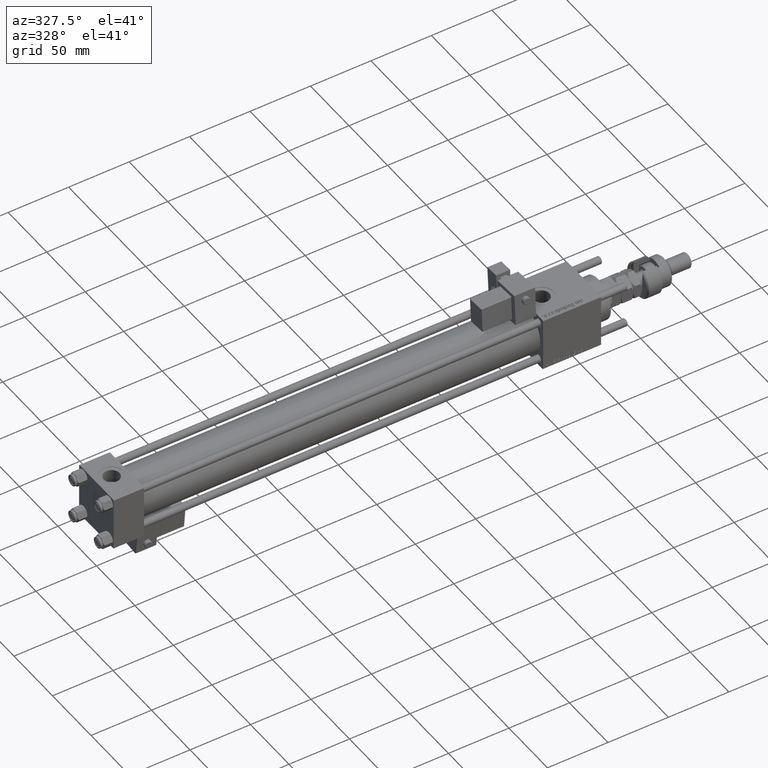
[diagram: clean part render]
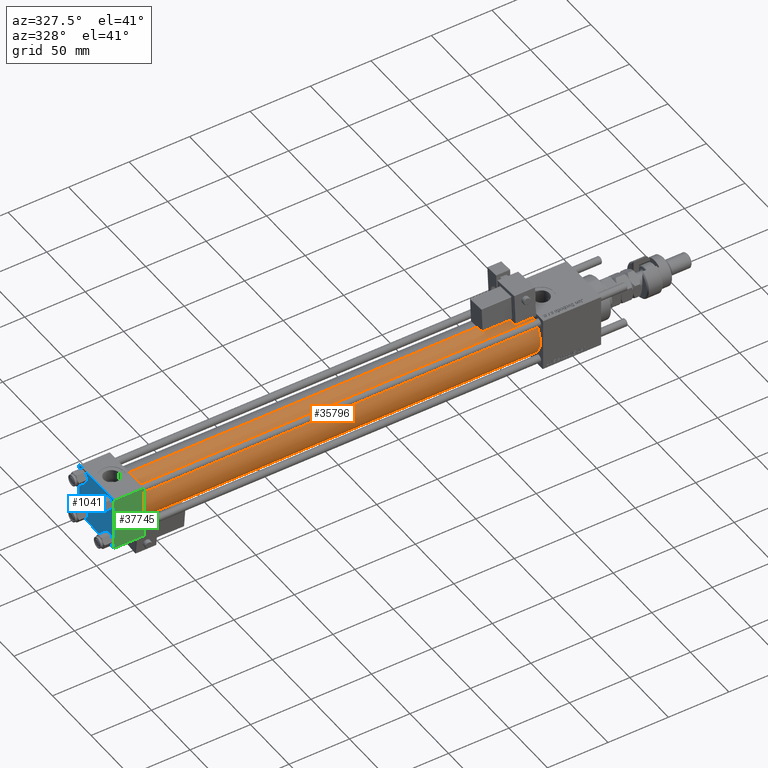
[diagram: same view with three faces highlighted in distinct colors, each labeled with its STEP entity id]
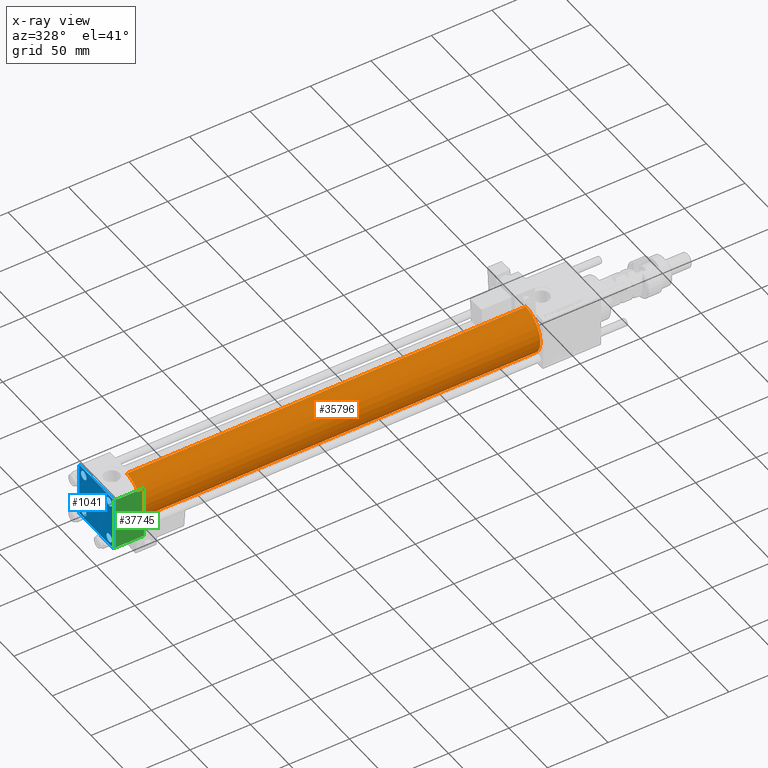
[diagram: x-ray of the same camera — body ghosted, the three highlighted faces saturated]
A machine part, auxiliary view with three faces highlighted in distinct colors.
The next image is the same camera in x-ray (body ghosted, the three faces saturated) — at least one of them is partly hidden behind the body in this view.
Their STEP definitions:

[orange] entity #35796 — the highlighted cylindrical surface (edge-blend (fillet) strip) has radius 19 mm, axis along (-1, -0, -0).
#879 = DIRECTION ( 'NONE',  ( 1.000000000000000000, -0.000000000000000000, 0.000000000000000000 ) ) ;
#2211 = EDGE_CURVE ( 'NONE', #40407, #42524, #3230, .T. ) ;
#3114 = AXIS2_PLACEMENT_3D ( 'NONE', #50347, #879, #40004 ) ;
#3230 = LINE ( 'NONE', #27159, #59552 ) ;
#4105 = AXIS2_PLACEMENT_3D ( 'NONE', #26622, #46352, #12707 ) ;
#5595 = EDGE_CURVE ( 'NONE', #40407, #15595, #50190, .T. ) ;
#11231 = ORIENTED_EDGE ( 'NONE', *, *, #5595, .F. ) ;
#12707 = DIRECTION ( 'NONE',  ( 0.000000000000000000, 0.000000000000000000, 1.000000000000000000 ) ) ;
#13084 = CARTESIAN_POINT ( 'NONE',  ( 355.0000000000000568, -2.602085213965210642E-15, 0.000000000000000000 ) ) ;
#15160 = AXIS2_PLACEMENT_3D ( 'NONE', #13084, #62222, #18244 ) ;
#15494 = CIRCLE ( 'NONE', #3114, 19.00000000000000000 ) ;
#15595 = VERTEX_POINT ( 'NONE', #47426 ) ;
#18244 = DIRECTION ( 'NONE',  ( 0.000000000000000000, 0.000000000000000000, -1.000000000000000000 ) ) ;
#22395 = CYLINDRICAL_SURFACE ( 'NONE', #4105, 19.00000000000000000 ) ;
#25767 = VECTOR ( 'NONE', #37605, 1000.000000000000000 ) ;
#26622 = CARTESIAN_POINT ( 'NONE',  ( 355.0000000000000568, -2.602085213965210642E-15, 0.000000000000000000 ) ) ;
#27159 = CARTESIAN_POINT ( 'NONE',  ( 355.0000000000000568, -2.602085213965210642E-15, 19.00000000000000000 ) ) ;
#27908 = CARTESIAN_POINT ( 'NONE',  ( 355.0000000000000568, -2.752562955852396712E-16, -19.00000000000000000 ) ) ;
#33250 = ORIENTED_EDGE ( 'NONE', *, *, #2211, .T. ) ;
#35796 = ADVANCED_FACE ( 'NONE', ( #46036 ), #22395, .T. ) ;
#37605 = DIRECTION ( 'NONE',  ( -1.000000000000000000, -0.000000000000000000, -0.000000000000000000 ) ) ;
#40004 = DIRECTION ( 'NONE',  ( 0.000000000000000000, 0.000000000000000000, 1.000000000000000000 ) ) ;
#40407 = VERTEX_POINT ( 'NONE', #57990 ) ;
#42524 = VERTEX_POINT ( 'NONE', #60083 ) ;
#43105 = LINE ( 'NONE', #27908, #25767 ) ;
#43531 = VERTEX_POINT ( 'NONE', #62310 ) ;
#44284 = ORIENTED_EDGE ( 'NONE', *, *, #59370, .F. ) ;
#46036 = FACE_OUTER_BOUND ( 'NONE', #49205, .T. ) ;
#46352 = DIRECTION ( 'NONE',  ( -1.000000000000000000, -0.000000000000000000, -0.000000000000000000 ) ) ;
#46895 = DIRECTION ( 'NONE',  ( -1.000000000000000000, -0.000000000000000000, -0.000000000000000000 ) ) ;
#47426 = CARTESIAN_POINT ( 'NONE',  ( 355.0000000000000568, -2.752562955852396712E-16, -19.00000000000000000 ) ) ;
#48452 = ORIENTED_EDGE ( 'NONE', *, *, #57094, .T. ) ;
#49205 = EDGE_LOOP ( 'NONE', ( #44284, #11231, #33250, #48452 ) ) ;
#50190 = CIRCLE ( 'NONE', #15160, 19.00000000000000000 ) ;
#50347 = CARTESIAN_POINT ( 'NONE',  ( 25.00000000000002132, -2.602085213965210642E-15, 0.000000000000000000 ) ) ;
#57094 = EDGE_CURVE ( 'NONE', #42524, #43531, #15494, .T. ) ;
#57990 = CARTESIAN_POINT ( 'NONE',  ( 355.0000000000000568, -2.602085213965210642E-15, 19.00000000000000000 ) ) ;
#59370 = EDGE_CURVE ( 'NONE', #15595, #43531, #43105, .T. ) ;
#59552 = VECTOR ( 'NONE', #46895, 1000.000000000000000 ) ;
#60083 = CARTESIAN_POINT ( 'NONE',  ( 25.00000000000002132, -2.602085213965210642E-15, 19.00000000000000000 ) ) ;
#62222 = DIRECTION ( 'NONE',  ( 1.000000000000000000, 0.000000000000000000, 0.000000000000000000 ) ) ;
#62310 = CARTESIAN_POINT ( 'NONE',  ( 25.00000000000002132, -2.752562955852396712E-16, -19.00000000000000000 ) ) ;

[blue] entity #1041 — the highlighted planar face has unit normal (-1, 0, 0).
#209 = ORIENTED_EDGE ( 'NONE', *, *, #47847, .F. ) ;
#253 = DIRECTION ( 'NONE',  ( 1.000000000000000000, -0.000000000000000000, 0.000000000000000000 ) ) ;
#1041 = ADVANCED_FACE ( 'NONE', ( #62810, #47627, #62476, #18192, #37918 ), #33369, .T. ) ;
#1866 = CARTESIAN_POINT ( 'NONE',  ( 0.000000000000000000, -22.50000000000000000, -21.99999999999997158 ) ) ;
#1874 = CARTESIAN_POINT ( 'NONE',  ( 0.000000000000000000, 16.59999999999999787, -20.10000000000000142 ) ) ;
#2033 = CIRCLE ( 'NONE', #51562, 3.499999999999996003 ) ;
#3666 = VECTOR ( 'NONE', #10133, 1000.000000000000000 ) ;
#3687 = VERTEX_POINT ( 'NONE', #29966 ) ;
#3772 = VECTOR ( 'NONE', #33117, 1000.000000000000000 ) ;
#3834 = CARTESIAN_POINT ( 'NONE',  ( 0.000000000000000000, 16.59999999999999787, 16.60000000000000497 ) ) ;
#3898 = LINE ( 'NONE', #18432, #19552 ) ;
#4266 = EDGE_CURVE ( 'NONE', #24926, #26868, #48157, .T. ) ;
#4298 = DIRECTION ( 'NONE',  ( -0.000000000000000000, -0.7071067811865426878, -0.7071067811865524577 ) ) ;
#4313 = DIRECTION ( 'NONE',  ( 0.000000000000000000, 0.000000000000000000, 1.000000000000000000 ) ) ;
#4807 = CIRCLE ( 'NONE', #33677, 3.499999999999996003 ) ;
#5330 = CARTESIAN_POINT ( 'NONE',  ( 0.000000000000000000, 21.99999999999999289, 22.50000000000000355 ) ) ;
#5743 = VERTEX_POINT ( 'NONE', #59281 ) ;
#5837 = ORIENTED_EDGE ( 'NONE', *, *, #34842, .T. ) ;
#6214 = ORIENTED_EDGE ( 'NONE', *, *, #26239, .T. ) ;
#6684 = DIRECTION ( 'NONE',  ( 0.000000000000000000, 0.000000000000000000, 1.000000000000000000 ) ) ;
#7110 = EDGE_CURVE ( 'NONE', #3687, #45908, #42901, .T. ) ;
#7538 = AXIS2_PLACEMENT_3D ( 'NONE', #9085, #30078, #28802 ) ;
#7952 = CARTESIAN_POINT ( 'NONE',  ( 0.000000000000000000, 16.59999999999999787, -16.60000000000000497 ) ) ;
#9023 = CIRCLE ( 'NONE', #63750, 3.499999999999996003 ) ;
#9085 = CARTESIAN_POINT ( 'NONE',  ( 0.000000000000000000, -16.59999999999999076, -16.60000000000000853 ) ) ;
#9220 = CIRCLE ( 'NONE', #48498, 3.499999999999996003 ) ;
#9651 = LINE ( 'NONE', #39710, #35840 ) ;
#10133 = DIRECTION ( 'NONE',  ( 0.000000000000000000, 0.000000000000000000, -1.000000000000000000 ) ) ;
#13045 = VERTEX_POINT ( 'NONE', #49401 ) ;
#13101 = VERTEX_POINT ( 'NONE', #14495 ) ;
#13345 = DIRECTION ( 'NONE',  ( -0.000000000000000000, 0.000000000000000000, 1.000000000000000000 ) ) ;
#13668 = EDGE_CURVE ( 'NONE', #57993, #13045, #36433, .T. ) ;
#13722 = LINE ( 'NONE', #48632, #3772 ) ;
#13876 = CARTESIAN_POINT ( 'NONE',  ( 0.000000000000000000, 22.24999999999999645, 22.24999999999999645 ) ) ;
#13887 = CARTESIAN_POINT ( 'NONE',  ( 0.000000000000000000, -16.59999999999999076, 20.10000000000000853 ) ) ;
#13979 = DIRECTION ( 'NONE',  ( -1.000000000000000000, 0.000000000000000000, -0.000000000000000000 ) ) ;
#14495 = CARTESIAN_POINT ( 'NONE',  ( 0.000000000000000000, -21.99999999999997868, 22.50000000000000000 ) ) ;
#14509 = ORIENTED_EDGE ( 'NONE', *, *, #50752, .T. ) ;
#14671 = LINE ( 'NONE', #60220, #3666 ) ;
#14693 = VERTEX_POINT ( 'NONE', #38117 ) ;
#15117 = AXIS2_PLACEMENT_3D ( 'NONE', #57648, #13979, #13345 ) ;
#15419 = EDGE_LOOP ( 'NONE', ( #6214, #15757 ) ) ;
#15448 = CARTESIAN_POINT ( 'NONE',  ( 0.000000000000000000, 21.99999999999999289, -22.49999999999999645 ) ) ;
#15757 = ORIENTED_EDGE ( 'NONE', *, *, #13668, .T. ) ;
#16725 = VERTEX_POINT ( 'NONE', #1874 ) ;
#17010 = DIRECTION ( 'NONE',  ( 1.000000000000000000, -0.000000000000000000, 0.000000000000000000 ) ) ;
#17384 = DIRECTION ( 'NONE',  ( 0.000000000000000000, 0.000000000000000000, -1.000000000000000000 ) ) ;
#18192 = FACE_BOUND ( 'NONE', #61016, .T. ) ;
#18432 = CARTESIAN_POINT ( 'NONE',  ( -0.000000000000000000, -22.24999999999984013, 22.25000000000015277 ) ) ;
#19552 = VECTOR ( 'NONE', #33617, 999.9999999999998863 ) ;
#20776 = AXIS2_PLACEMENT_3D ( 'NONE', #7952, #27662, #22806 ) ;
#22711 = ORIENTED_EDGE ( 'NONE', *, *, #37268, .T. ) ;
#22806 = DIRECTION ( 'NONE',  ( 0.000000000000000000, 0.000000000000000000, 1.000000000000000000 ) ) ;
#23686 = DIRECTION ( 'NONE',  ( 0.000000000000000000, 0.000000000000000000, 1.000000000000000000 ) ) ;
#24624 = CARTESIAN_POINT ( 'NONE',  ( 0.000000000000000000, 16.59999999999999787, -13.10000000000000675 ) ) ;
#24926 = VERTEX_POINT ( 'NONE', #5330 ) ;
#25480 = DIRECTION ( 'NONE',  ( 0.000000000000000000, -0.7071067811865426878, 0.7071067811865524577 ) ) ;
#26227 = ORIENTED_EDGE ( 'NONE', *, *, #63358, .T. ) ;
#26239 = EDGE_CURVE ( 'NONE', #13045, #57993, #4807, .T. ) ;
#26719 = VERTEX_POINT ( 'NONE', #24624 ) ;
#26868 = VERTEX_POINT ( 'NONE', #40482 ) ;
#26923 = DIRECTION ( 'NONE',  ( 0.000000000000000000, 0.000000000000000000, 1.000000000000000000 ) ) ;
#27071 = CARTESIAN_POINT ( 'NONE',  ( 0.000000000000000000, -22.50000000000000000, 22.50000000000000000 ) ) ;
#27616 = EDGE_CURVE ( 'NONE', #56239, #55538, #39926, .T. ) ;
#27662 = DIRECTION ( 'NONE',  ( 1.000000000000000000, -0.000000000000000000, 0.000000000000000000 ) ) ;
#28524 = ORIENTED_EDGE ( 'NONE', *, *, #27616, .T. ) ;
#28802 = DIRECTION ( 'NONE',  ( 0.000000000000000000, 0.000000000000000000, 1.000000000000000000 ) ) ;
#29175 = LINE ( 'NONE', #48902, #55730 ) ;
#29191 = ORIENTED_EDGE ( 'NONE', *, *, #7110, .F. ) ;
#29966 = CARTESIAN_POINT ( 'NONE',  ( 0.000000000000000000, -22.50000000000000000, 22.00000000000000000 ) ) ;
#30078 = DIRECTION ( 'NONE',  ( 1.000000000000000000, -0.000000000000000000, 0.000000000000000000 ) ) ;
#30864 = CARTESIAN_POINT ( 'NONE',  ( 0.000000000000000000, -16.59999999999999076, -20.10000000000000497 ) ) ;
#32300 = EDGE_CURVE ( 'NONE', #63889, #14693, #54633, .T. ) ;
#33117 = DIRECTION ( 'NONE',  ( 0.000000000000000000, -1.000000000000000000, -7.709882115452476934E-17 ) ) ;
#33369 = PLANE ( 'NONE',  #15117 ) ;
#33617 = DIRECTION ( 'NONE',  ( -0.000000000000000000, 0.7071067811865525687, 0.7071067811865425767 ) ) ;
#33677 = AXIS2_PLACEMENT_3D ( 'NONE', #56143, #17010, #6684 ) ;
#33712 = CARTESIAN_POINT ( 'NONE',  ( 0.000000000000000000, 16.59999999999999787, 16.60000000000000497 ) ) ;
#33730 = AXIS2_PLACEMENT_3D ( 'NONE', #33712, #54413, #23686 ) ;
#33878 = DIRECTION ( 'NONE',  ( 0.000000000000000000, 0.000000000000000000, 1.000000000000000000 ) ) ;
#33959 = EDGE_CURVE ( 'NONE', #43121, #5743, #2033, .T. ) ;
#33960 = VECTOR ( 'NONE', #54306, 1000.000000000000000 ) ;
#34842 = EDGE_CURVE ( 'NONE', #5743, #43121, #9220, .T. ) ;
#35099 = EDGE_LOOP ( 'NONE', ( #43504, #5837 ) ) ;
#35235 = CIRCLE ( 'NONE', #20776, 3.499999999999996003 ) ;
#35334 = CARTESIAN_POINT ( 'NONE',  ( 0.000000000000000000, 16.59999999999999787, 13.10000000000000675 ) ) ;
#35840 = VECTOR ( 'NONE', #25480, 1000.000000000000000 ) ;
#36433 = CIRCLE ( 'NONE', #7538, 3.499999999999996003 ) ;
#37268 = EDGE_CURVE ( 'NONE', #3687, #13101, #3898, .T. ) ;
#37618 = DIRECTION ( 'NONE',  ( 1.000000000000000000, -0.000000000000000000, 0.000000000000000000 ) ) ;
#37918 = FACE_OUTER_BOUND ( 'NONE', #55518, .T. ) ;
#38117 = CARTESIAN_POINT ( 'NONE',  ( 0.000000000000000000, -21.99999999999997158, -22.50000000000000711 ) ) ;
#38898 = ORIENTED_EDGE ( 'NONE', *, *, #46179, .T. ) ;
#39710 = CARTESIAN_POINT ( 'NONE',  ( 0.000000000000000000, -22.25000000000014566, -22.24999999999984013 ) ) ;
#39926 = CIRCLE ( 'NONE', #33730, 3.499999999999996003 ) ;
#39946 = ORIENTED_EDGE ( 'NONE', *, *, #49890, .T. ) ;
#40078 = CARTESIAN_POINT ( 'NONE',  ( 0.000000000000000000, 22.50000000000000000, -22.49999999999999645 ) ) ;
#40482 = CARTESIAN_POINT ( 'NONE',  ( 0.000000000000000000, 22.50000000000000000, 21.99999999999999645 ) ) ;
#41169 = DIRECTION ( 'NONE',  ( 1.000000000000000000, -0.000000000000000000, 0.000000000000000000 ) ) ;
#41922 = CARTESIAN_POINT ( 'NONE',  ( 0.000000000000000000, 22.50000000000000000, -21.99999999999996803 ) ) ;
#42901 = LINE ( 'NONE', #27071, #48203 ) ;
#43080 = VECTOR ( 'NONE', #57548, 1000.000000000000114 ) ;
#43121 = VERTEX_POINT ( 'NONE', #13887 ) ;
#43252 = EDGE_LOOP ( 'NONE', ( #14509, #26227 ) ) ;
#43504 = ORIENTED_EDGE ( 'NONE', *, *, #33959, .T. ) ;
#45908 = VERTEX_POINT ( 'NONE', #1866 ) ;
#46179 = EDGE_CURVE ( 'NONE', #26868, #54887, #14671, .T. ) ;
#47033 = CARTESIAN_POINT ( 'NONE',  ( 0.000000000000000000, 16.59999999999999787, 20.10000000000000142 ) ) ;
#47461 = DIRECTION ( 'NONE',  ( 1.000000000000000000, -0.000000000000000000, 0.000000000000000000 ) ) ;
#47627 = FACE_BOUND ( 'NONE', #15419, .T. ) ;
#47847 = EDGE_CURVE ( 'NONE', #24926, #13101, #13722, .T. ) ;
#47990 = EDGE_CURVE ( 'NONE', #55538, #56239, #50241, .T. ) ;
#48157 = LINE ( 'NONE', #13876, #43080 ) ;
#48203 = VECTOR ( 'NONE', #17384, 1000.000000000000000 ) ;
#48498 = AXIS2_PLACEMENT_3D ( 'NONE', #51511, #41169, #26923 ) ;
#48632 = CARTESIAN_POINT ( 'NONE',  ( 0.000000000000000000, 22.50000000000000000, 22.50000000000000355 ) ) ;
#48902 = CARTESIAN_POINT ( 'NONE',  ( 0.000000000000000000, 22.25000000000014566, -22.24999999999984013 ) ) ;
#49401 = CARTESIAN_POINT ( 'NONE',  ( 0.000000000000000000, -16.59999999999999076, -13.10000000000001030 ) ) ;
#49890 = EDGE_CURVE ( 'NONE', #14693, #45908, #9651, .T. ) ;
#50241 = CIRCLE ( 'NONE', #59557, 3.499999999999996003 ) ;
#50752 = EDGE_CURVE ( 'NONE', #26719, #16725, #9023, .T. ) ;
#50903 = ORIENTED_EDGE ( 'NONE', *, *, #47990, .T. ) ;
#51511 = CARTESIAN_POINT ( 'NONE',  ( 0.000000000000000000, -16.59999999999999076, 16.60000000000000853 ) ) ;
#51562 = AXIS2_PLACEMENT_3D ( 'NONE', #63458, #37618, #4313 ) ;
#53524 = ORIENTED_EDGE ( 'NONE', *, *, #4266, .T. ) ;
#54306 = DIRECTION ( 'NONE',  ( 0.000000000000000000, -1.000000000000000000, -2.312964634635742957E-16 ) ) ;
#54413 = DIRECTION ( 'NONE',  ( 1.000000000000000000, -0.000000000000000000, 0.000000000000000000 ) ) ;
#54633 = LINE ( 'NONE', #40078, #33960 ) ;
#54887 = VERTEX_POINT ( 'NONE', #41922 ) ;
#55518 = EDGE_LOOP ( 'NONE', ( #38898, #56089, #62209, #39946, #29191, #22711, #209, #53524 ) ) ;
#55538 = VERTEX_POINT ( 'NONE', #35334 ) ;
#55730 = VECTOR ( 'NONE', #4298, 1000.000000000000000 ) ;
#56089 = ORIENTED_EDGE ( 'NONE', *, *, #59349, .T. ) ;
#56143 = CARTESIAN_POINT ( 'NONE',  ( 0.000000000000000000, -16.59999999999999076, -16.60000000000000853 ) ) ;
#56239 = VERTEX_POINT ( 'NONE', #47033 ) ;
#56851 = CARTESIAN_POINT ( 'NONE',  ( 0.000000000000000000, 16.59999999999999787, -16.60000000000000497 ) ) ;
#57548 = DIRECTION ( 'NONE',  ( 0.000000000000000000, 0.7071067811865474617, -0.7071067811865474617 ) ) ;
#57648 = CARTESIAN_POINT ( 'NONE',  ( 0.000000000000000000, 0.000000000000000000, 0.000000000000000000 ) ) ;
#57993 = VERTEX_POINT ( 'NONE', #30864 ) ;
#59281 = CARTESIAN_POINT ( 'NONE',  ( 0.000000000000000000, -16.59999999999999076, 13.10000000000001030 ) ) ;
#59349 = EDGE_CURVE ( 'NONE', #54887, #63889, #29175, .T. ) ;
#59557 = AXIS2_PLACEMENT_3D ( 'NONE', #3834, #253, #33878 ) ;
#60220 = CARTESIAN_POINT ( 'NONE',  ( 0.000000000000000000, 22.50000000000000000, 22.50000000000000355 ) ) ;
#61016 = EDGE_LOOP ( 'NONE', ( #28524, #50903 ) ) ;
#62209 = ORIENTED_EDGE ( 'NONE', *, *, #32300, .T. ) ;
#62312 = DIRECTION ( 'NONE',  ( 0.000000000000000000, 0.000000000000000000, 1.000000000000000000 ) ) ;
#62476 = FACE_BOUND ( 'NONE', #43252, .T. ) ;
#62810 = FACE_BOUND ( 'NONE', #35099, .T. ) ;
#63358 = EDGE_CURVE ( 'NONE', #16725, #26719, #35235, .T. ) ;
#63458 = CARTESIAN_POINT ( 'NONE',  ( 0.000000000000000000, -16.59999999999999076, 16.60000000000000853 ) ) ;
#63750 = AXIS2_PLACEMENT_3D ( 'NONE', #56851, #47461, #62312 ) ;
#63889 = VERTEX_POINT ( 'NONE', #15448 ) ;

[green] entity #37745 — the highlighted planar face has unit normal (0, 1, 0).
#1866 = CARTESIAN_POINT ( 'NONE',  ( 0.000000000000000000, -22.50000000000000000, -21.99999999999997158 ) ) ;
#2246 = ORIENTED_EDGE ( 'NONE', *, *, #46410, .T. ) ;
#3687 = VERTEX_POINT ( 'NONE', #29966 ) ;
#4170 = CARTESIAN_POINT ( 'NONE',  ( 25.00000000000000000, -22.50000000000000000, 22.50000000000000000 ) ) ;
#4457 = CARTESIAN_POINT ( 'NONE',  ( 25.00000000000000000, -22.50000000000000000, 22.50000000000000000 ) ) ;
#4469 = EDGE_CURVE ( 'NONE', #47315, #60329, #62048, .T. ) ;
#5745 = DIRECTION ( 'NONE',  ( 0.000000000000000000, -0.000000000000000000, 1.000000000000000000 ) ) ;
#7110 = EDGE_CURVE ( 'NONE', #3687, #45908, #42901, .T. ) ;
#9615 = EDGE_LOOP ( 'NONE', ( #40426, #2246, #56724, #39555 ) ) ;
#15423 = AXIS2_PLACEMENT_3D ( 'NONE', #4457, #34834, #5745 ) ;
#17384 = DIRECTION ( 'NONE',  ( 0.000000000000000000, 0.000000000000000000, -1.000000000000000000 ) ) ;
#21247 = VECTOR ( 'NONE', #41151, 1000.000000000000000 ) ;
#24401 = CARTESIAN_POINT ( 'NONE',  ( 25.00000000000000000, -22.50000000000000000, -21.99999999999997158 ) ) ;
#24474 = PLANE ( 'NONE',  #15423 ) ;
#27071 = CARTESIAN_POINT ( 'NONE',  ( 0.000000000000000000, -22.50000000000000000, 22.50000000000000000 ) ) ;
#27602 = CARTESIAN_POINT ( 'NONE',  ( 25.00000000000000000, -22.50000000000000000, 22.00000000000000000 ) ) ;
#29966 = CARTESIAN_POINT ( 'NONE',  ( 0.000000000000000000, -22.50000000000000000, 22.00000000000000000 ) ) ;
#31183 = LINE ( 'NONE', #27602, #44347 ) ;
#33884 = EDGE_CURVE ( 'NONE', #47315, #3687, #31183, .T. ) ;
#34717 = VECTOR ( 'NONE', #63316, 1000.000000000000000 ) ;
#34834 = DIRECTION ( 'NONE',  ( -0.000000000000000000, 1.000000000000000000, 0.000000000000000000 ) ) ;
#36608 = LINE ( 'NONE', #60548, #21247 ) ;
#37745 = ADVANCED_FACE ( 'NONE', ( #39680 ), #24474, .F. ) ;
#39555 = ORIENTED_EDGE ( 'NONE', *, *, #33884, .T. ) ;
#39680 = FACE_OUTER_BOUND ( 'NONE', #9615, .T. ) ;
#40426 = ORIENTED_EDGE ( 'NONE', *, *, #7110, .T. ) ;
#41151 = DIRECTION ( 'NONE',  ( 1.000000000000000000, 0.000000000000000000, 0.000000000000000000 ) ) ;
#42901 = LINE ( 'NONE', #27071, #48203 ) ;
#44347 = VECTOR ( 'NONE', #56084, 1000.000000000000000 ) ;
#45908 = VERTEX_POINT ( 'NONE', #1866 ) ;
#46410 = EDGE_CURVE ( 'NONE', #45908, #60329, #36608, .T. ) ;
#47315 = VERTEX_POINT ( 'NONE', #49268 ) ;
#48203 = VECTOR ( 'NONE', #17384, 1000.000000000000000 ) ;
#49268 = CARTESIAN_POINT ( 'NONE',  ( 25.00000000000000000, -22.50000000000000000, 22.00000000000000000 ) ) ;
#56084 = DIRECTION ( 'NONE',  ( -1.000000000000000000, 0.000000000000000000, 0.000000000000000000 ) ) ;
#56724 = ORIENTED_EDGE ( 'NONE', *, *, #4469, .F. ) ;
#60329 = VERTEX_POINT ( 'NONE', #24401 ) ;
#60548 = CARTESIAN_POINT ( 'NONE',  ( 25.00000000000000000, -22.50000000000000000, -21.99999999999998579 ) ) ;
#62048 = LINE ( 'NONE', #4170, #34717 ) ;
#63316 = DIRECTION ( 'NONE',  ( 0.000000000000000000, 0.000000000000000000, -1.000000000000000000 ) ) ;